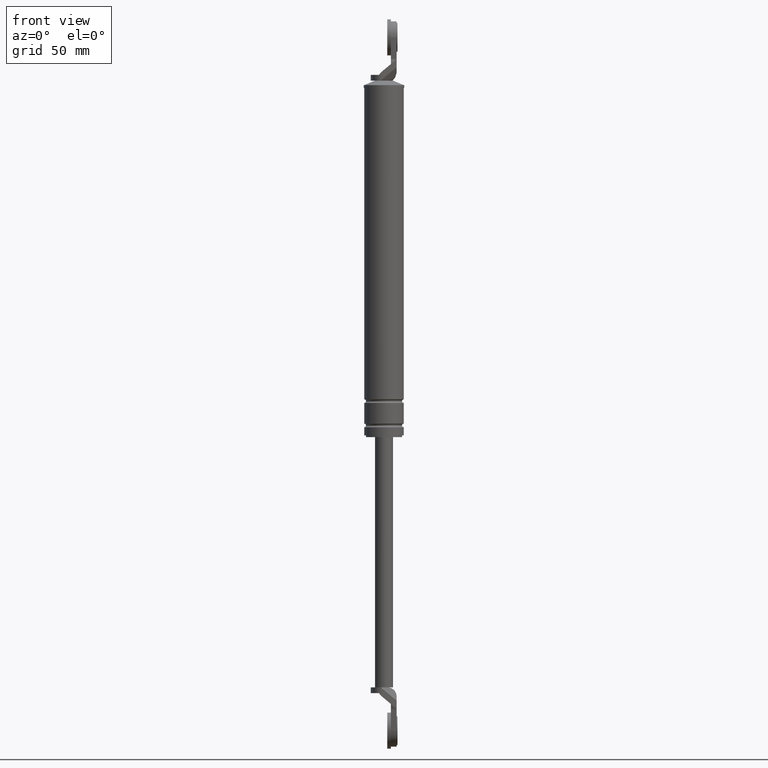
[diagram: clean part render]
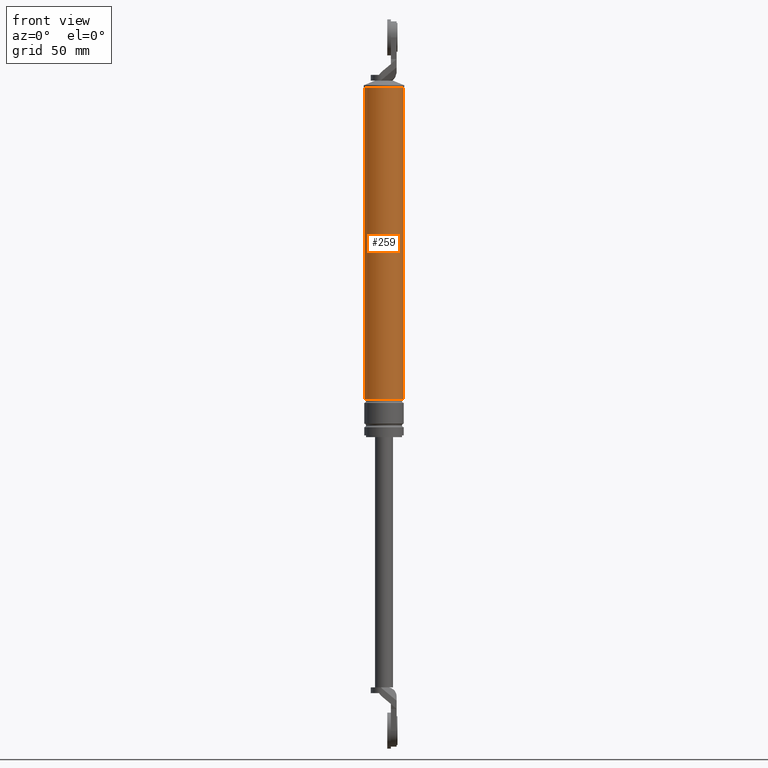
[diagram: same view with one face highlighted and labeled with its STEP entity id]
A machine part, front view. The second image highlights one B-rep face of the part: STEP entity #259.
In plain terms, the highlighted cylindrical surface (edge-blend (fillet) strip) has radius 11 mm, axis along (0, 0, 1).
Its self-contained STEP definition (entity closure, byte-faithful):
#259=ADVANCED_FACE('',(#847),#846,.T.);
#846=CYLINDRICAL_SURFACE('',#1591,1.10000000000E+001);
#847=FACE_OUTER_BOUND('',#1592,.T.);
#1588=CARTESIAN_POINT('',(0.00000000000E+000,3.58204186421E-014,0.00000000000E+000));
#1589=DIRECTION('',(-0.00000000000E+000,-0.00000000000E+000,1.00000000000E+000));
#1590=DIRECTION('',(1.00000000000E+000,-0.00000000000E+000,-0.00000000000E+000));
#1591=AXIS2_PLACEMENT_3D('',#1588,#1589,#1590);
#1592=EDGE_LOOP('',(#2034,#2035,#2036,#2037));
#2034=ORIENTED_EDGE('',*,*,#2304,.F.);
#2035=ORIENTED_EDGE('',*,*,#2307,.T.);
#2036=ORIENTED_EDGE('',*,*,#2271,.T.);
#2037=ORIENTED_EDGE('',*,*,#2308,.F.);
#2271=EDGE_CURVE('',#2994,#2995,#2996,.T.);
#2304=EDGE_CURVE('',#3187,#3186,#3206,.T.);
#2307=EDGE_CURVE('',#3187,#2994,#3224,.T.);
#2308=EDGE_CURVE('',#3186,#2995,#3230,.T.);
#2994=VERTEX_POINT('',#4097);
#2995=VERTEX_POINT('',#4098);
#2996=CIRCLE('',#4102,1.10000000000E+001);
#3186=VERTEX_POINT('',#4207);
#3187=VERTEX_POINT('',#4208);
#3206=CIRCLE('',#4226,1.10000000000E+001);
#3224=(BOUNDED_CURVE() B_SPLINE_CURVE(1,(#4231,#4232),.UNSPECIFIED.,.F.,.F.) B_SPLINE_CURVE_WITH_KNOTS((2,2),(5.18134715035E-002,9.48186528508E-001),.UNSPECIFIED.) CURVE() GEOMETRIC_REPRESENTATION_ITEM() RATIONAL_B_SPLINE_CURVE((1.00000000000E+000,1.00000000000E+000)) REPRESENTATION_ITEM('') );
#3230=(BOUNDED_CURVE() B_SPLINE_CURVE(1,(#4233,#4234),.UNSPECIFIED.,.F.,.F.) B_SPLINE_CURVE_WITH_KNOTS((2,2),(5.18134715026E-002,9.48186528497E-001),.UNSPECIFIED.) CURVE() GEOMETRIC_REPRESENTATION_ITEM() RATIONAL_B_SPLINE_CURVE((7.50000000000E-001,7.50000000000E-001)) REPRESENTATION_ITEM('') );
#4097=CARTESIAN_POINT('',(1.10000000000E+001,3.61192557345E-014,8.49999850000E+001));
#4098=CARTESIAN_POINT('',(-1.10000000000E+001,3.58204186421E-014,8.49999850000E+001));
#4099=CARTESIAN_POINT('',(0.00000000000E+000,3.58204186421E-014,8.49999850000E+001));
#4100=DIRECTION('',(-0.00000000000E+000,0.00000000000E+000,-1.00000000000E+000));
#4101=DIRECTION('',(-1.00000000000E+000,-1.22460635382E-016,0.00000000000E+000));
#4102=AXIS2_PLACEMENT_3D('',#4099,#4100,#4101);
#4207=CARTESIAN_POINT('',(-1.10000000000E+001,3.58204186421E-014,-8.80000150000E+001));
#4208=CARTESIAN_POINT('',(1.10000000000E+001,3.61192557345E-014,-8.80000150000E+001));
#4223=CARTESIAN_POINT('',(0.00000000000E+000,3.58204186421E-014,-8.80000150000E+001));
#4224=DIRECTION('',(-0.00000000000E+000,0.00000000000E+000,-1.00000000000E+000));
#4225=DIRECTION('',(-1.00000000000E+000,-1.22460635382E-016,0.00000000000E+000));
#4226=AXIS2_PLACEMENT_3D('',#4223,#4224,#4225);
#4231=CARTESIAN_POINT('',(1.10000000000E+001,3.58204186421E-014,-8.80000149998E+001));
#4232=CARTESIAN_POINT('',(1.10000000000E+001,3.58204186421E-014,8.49999850021E+001));
#4233=CARTESIAN_POINT('',(-1.10000000000E+001,3.55271367880E-014,-8.80000150000E+001));
#4234=CARTESIAN_POINT('',(-1.10000000000E+001,3.55271367880E-014,8.49999850000E+001));